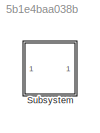
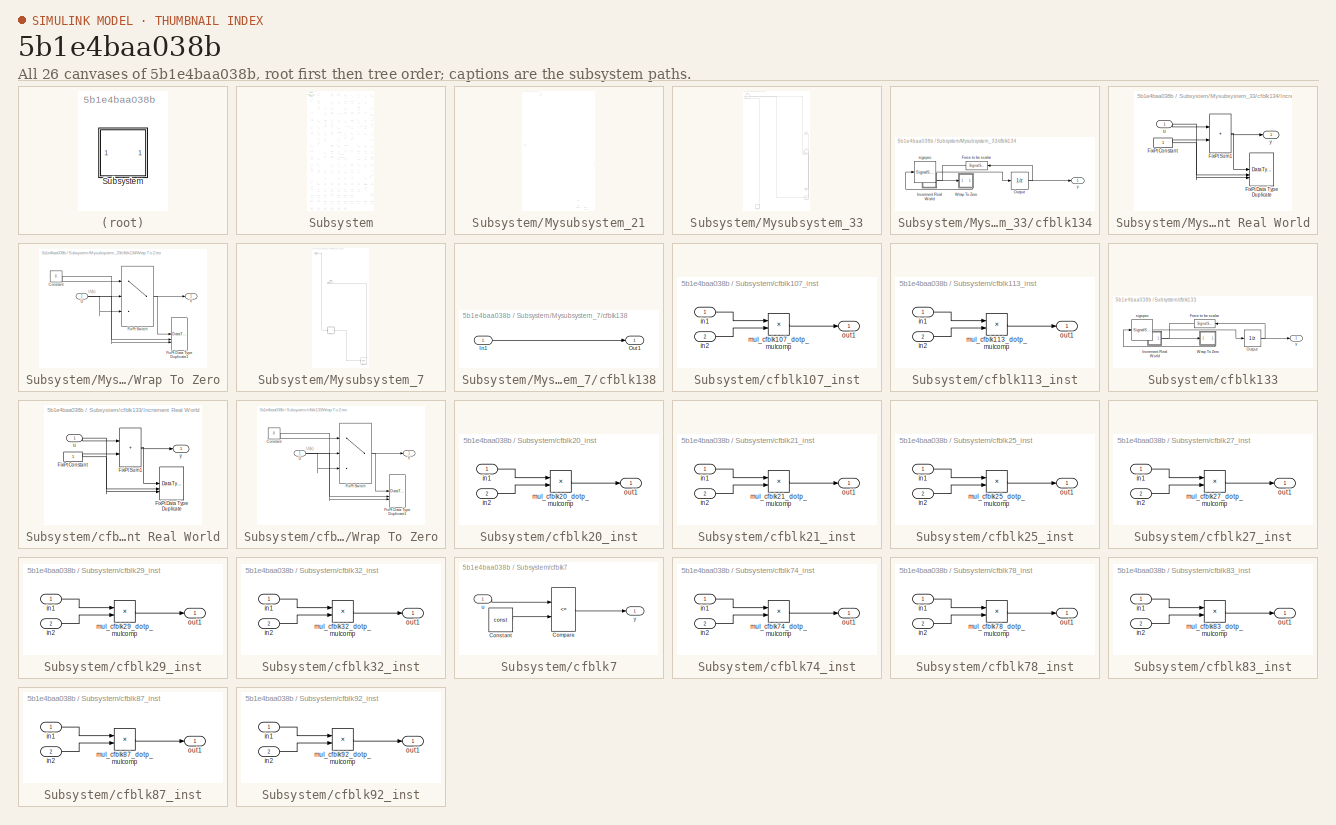
[diagram: thumbnail index - all 26 canvases of the model, root first then tree order]
MODEL slx_5b1e4baa038b
KIND model
CONFIG AbsTol = auto
CONFIG EnableMultiTasking = off
CONFIG FixedStep = auto
CONFIG MaxStep = auto
CONFIG MinStep = auto
CONFIG RelTol = 1e-3
CONFIG SampleTimeConstraint = Unconstrained
CONFIG SolverName = VariableStepAuto
CONFIG StartTime = 0.0
CONFIG StopTime = 10.0
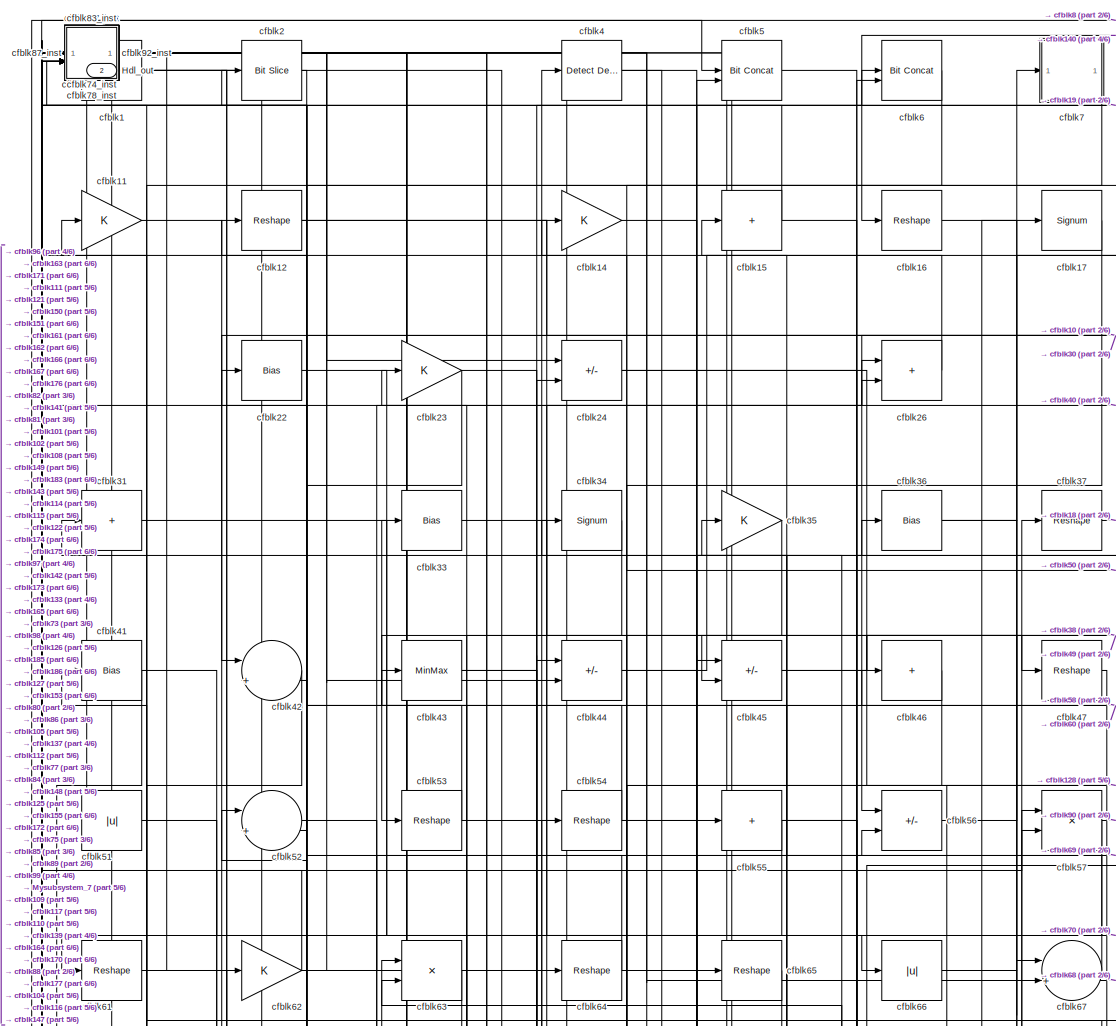
[diagram: Subsystem - part 1/6, top center region]
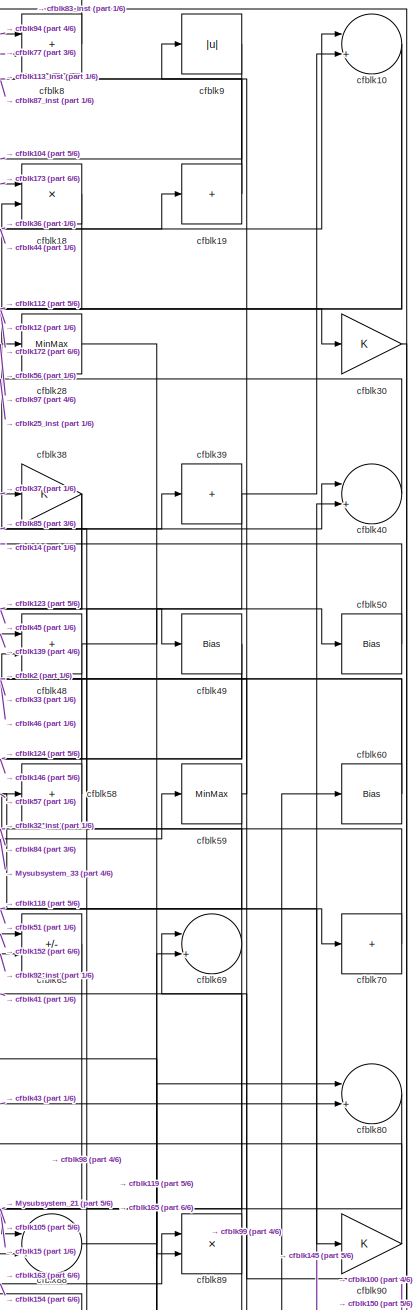
[diagram: Subsystem - part 2/6, top right region]
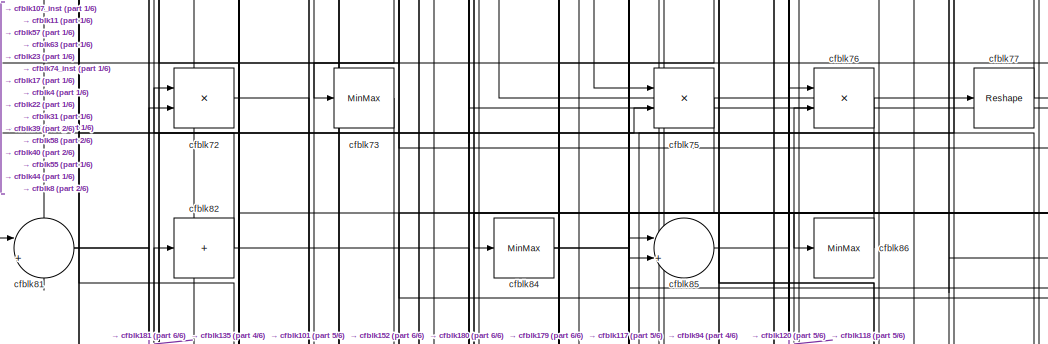
[diagram: Subsystem - part 3/6, central region]
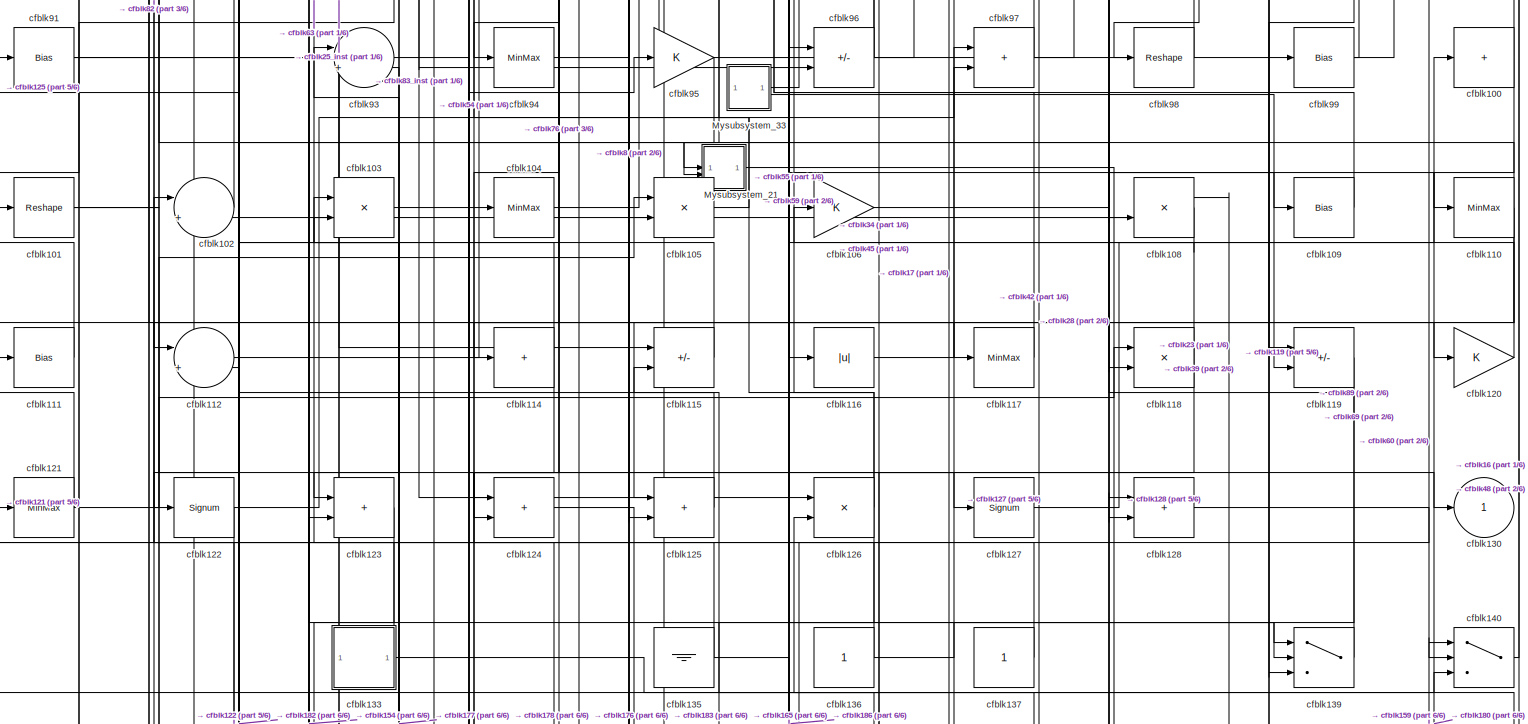
[diagram: Subsystem - part 4/6, full width, middle band]
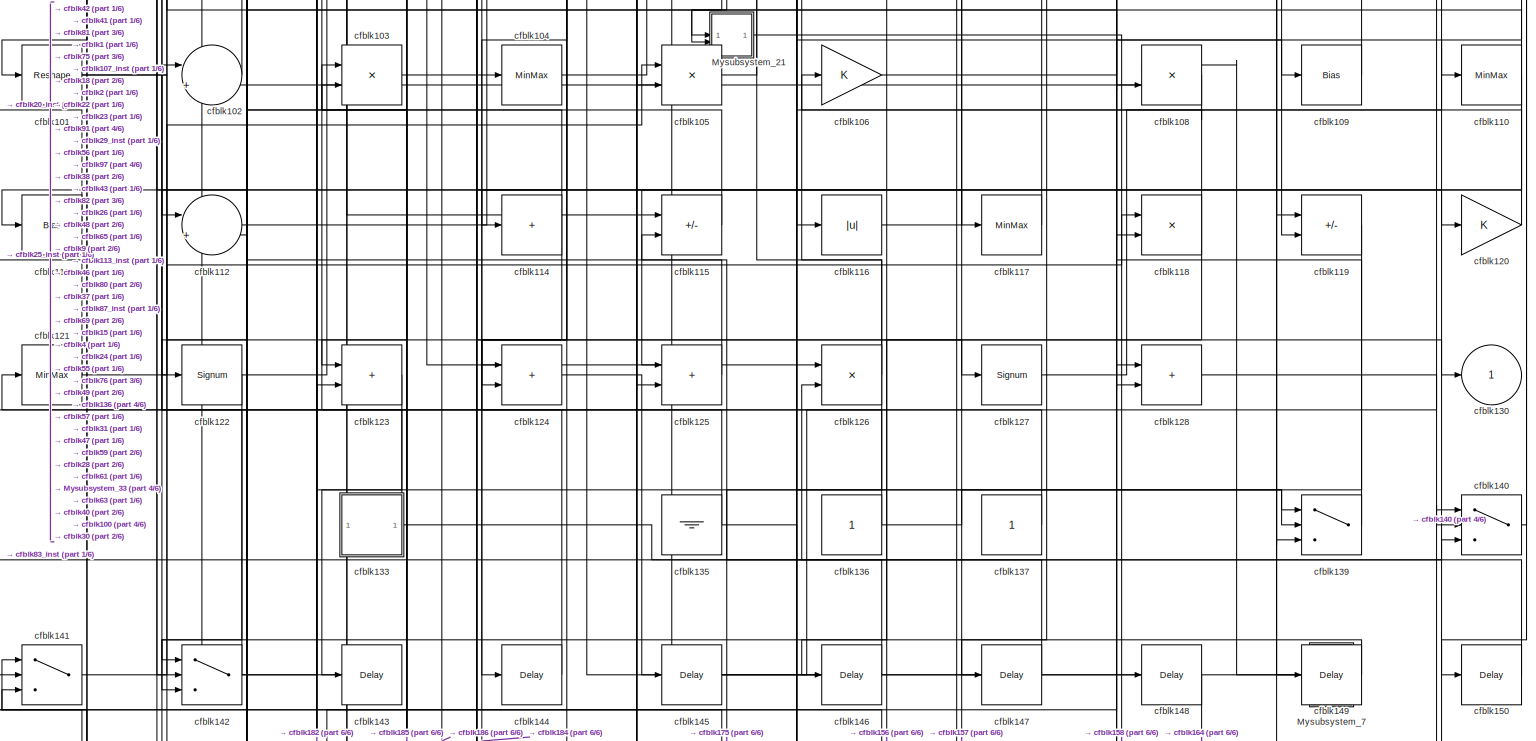
[diagram: Subsystem - part 5/6, full width, middle band]
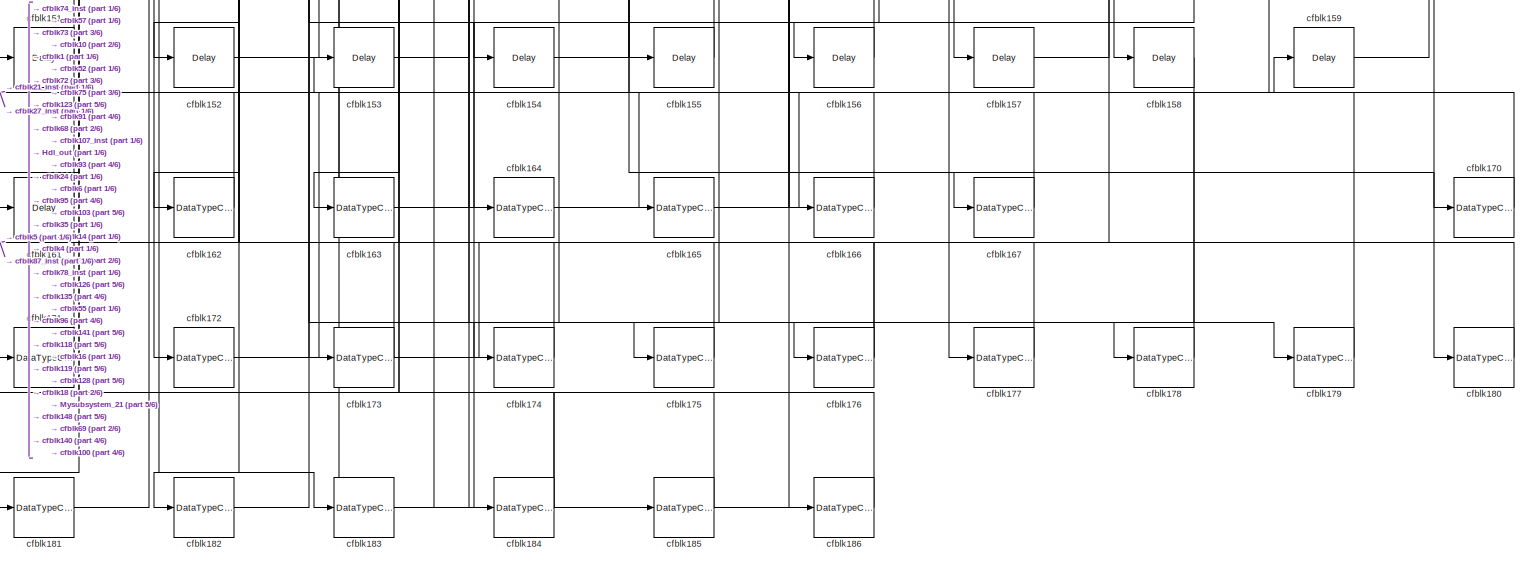
[diagram: Subsystem - part 6/6, full width, bottom band]
BLOCK [SubSystem] Subsystem
BLOCK [Outport] Subsystem/Hdl_out
  OutDataTypeStr = uint8
  Port = 2
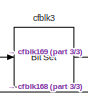
[diagram: Subsystem/Mysubsystem_21 - part 1/3, top left region]
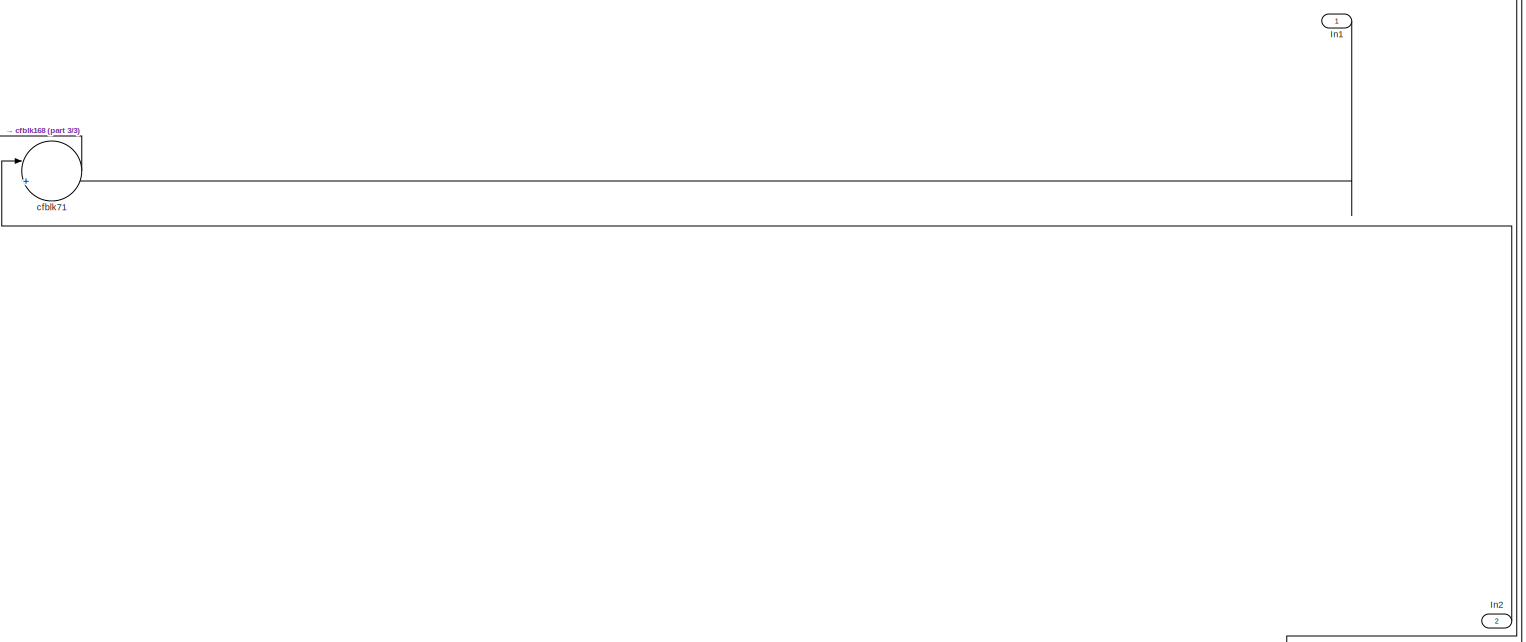
[diagram: Subsystem/Mysubsystem_21 - part 2/3, full width, middle band]
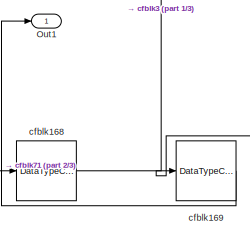
[diagram: Subsystem/Mysubsystem_21 - part 3/3, bottom right region]
BLOCK [SubSystem] Subsystem/Mysubsystem_21
BLOCK [Inport] Subsystem/Mysubsystem_21/In1
  OutDataTypeStr = uint8
  PortDimensions = 1
  SampleTime = 1
BLOCK [Inport] Subsystem/Mysubsystem_21/In2
  OutDataTypeStr = uint8
  Port = 2
  PortDimensions = 1
  SampleTime = 1
BLOCK [Outport] Subsystem/Mysubsystem_21/Out1
  SampleTime = 1
BLOCK [DataTypeConversion] Subsystem/Mysubsystem_21/cfblk168
  OutDataTypeStr = boolean
  RndMeth = Floor
  SaturateOnIntegerOverflow = off
BLOCK [DataTypeConversion] Subsystem/Mysubsystem_21/cfblk169
  OutDataTypeStr = uint8
  RndMeth = Floor
  SaturateOnIntegerOverflow = off
BLOCK [Reference] Subsystem/Mysubsystem_21/cfblk3  REF=simulink/Logic and Bit
Operations/Bit Set
  LibrarySourceBlock = hdlsllib/Logic and Bit\nOperations/Bit Set
  SourceBlock = simulink/Logic and Bit\nOperations/Bit Set
  SourceType = Bit Set
BLOCK [Sum] Subsystem/Mysubsystem_21/cfblk71
  Inputs = |++
BLOCK [SubSystem] Subsystem/Mysubsystem_33
BLOCK [Outport] Subsystem/Mysubsystem_33/Out1
  SampleTime = 1
BLOCK [Outport] Subsystem/Mysubsystem_33/Out2
  Port = 2
  SampleTime = 1
BLOCK [Reshape] Subsystem/Mysubsystem_33/cfblk129
BLOCK [Reshape] Subsystem/Mysubsystem_33/cfblk13
BLOCK [SubSystem] Subsystem/Mysubsystem_33/cfblk134
BLOCK [SignalSpecification] Subsystem/Mysubsystem_33/cfblk134/Force to be scalar
  Dimensions = 1
  DisableCoverage = on
BLOCK [SubSystem] Subsystem/Mysubsystem_33/cfblk134/Increment Real World
BLOCK [Constant] Subsystem/Mysubsystem_33/cfblk134/Increment Real World/FixPt Constant
  DisableCoverage = on
  OutDataTypeStr = Inherit: Inherit via back propagation
  SampleTime = -1
BLOCK [DataTypeDuplicate] Subsystem/Mysubsystem_33/cfblk134/Increment Real World/FixPt Data Type Duplicate
  DisableCoverage = on
  NumInputPorts = 3
BLOCK [Sum] Subsystem/Mysubsystem_33/cfblk134/Increment Real World/FixPt Sum1
  IconShape = rectangular
  InputSameDT = on
  LockScale = on
  OutDataTypeStr = Inherit: Inherit via back propagation
BLOCK [Inport] Subsystem/Mysubsystem_33/cfblk134/Increment Real World/u
  OutDataTypeStr = uint16
  SampleTime = 1
BLOCK [Outport] Subsystem/Mysubsystem_33/cfblk134/Increment Real World/y
  SampleTime = 1
BLOCK [UnitDelay] Subsystem/Mysubsystem_33/cfblk134/Output
  HasFrameUpgradeWarning = on
  InitialCondition = 0.0
  SampleTime = tsamp
BLOCK [SubSystem] Subsystem/Mysubsystem_33/cfblk134/Wrap To Zero
BLOCK [Constant] Subsystem/Mysubsystem_33/cfblk134/Wrap To Zero/Constant
  DisableCoverage = on
  OutDataTypeStr = Inherit: Inherit via back propagation
  SampleTime = -1
  Value = 0
BLOCK [DataTypeDuplicate] Subsystem/Mysubsystem_33/cfblk134/Wrap To Zero/FixPt Data Type Duplicate1
  DisableCoverage = on
  NumInputPorts = 3
BLOCK [Switch] Subsystem/Mysubsystem_33/cfblk134/Wrap To Zero/FixPt Switch
  Criteria = u2 > Threshold
  InputSameDT = off
  OutDataTypeStr = Inherit: Inherit via back propagation
  SaturateOnIntegerOverflow = off
  Threshold = Threshold
  ZeroCross = off
BLOCK [Inport] Subsystem/Mysubsystem_33/cfblk134/Wrap To Zero/U
  OutDataTypeStr = uint16
  SampleTime = 1
BLOCK [Outport] Subsystem/Mysubsystem_33/cfblk134/Wrap To Zero/Y
  SampleTime = 1
BLOCK [SignalSpecification] Subsystem/Mysubsystem_33/cfblk134/sigspec
  Dimensions = 1
  OutDataTypeStr = uint16
BLOCK [Outport] Subsystem/Mysubsystem_33/cfblk134/y
  SampleTime = 1
BLOCK [Sum] Subsystem/Mysubsystem_33/cfblk79
  Inputs = |++
BLOCK [SubSystem] Subsystem/Mysubsystem_7
BLOCK [Inport] Subsystem/Mysubsystem_7/In1
  OutDataTypeStr = uint8
  PortDimensions = 1
  SampleTime = 1
BLOCK [Outport] Subsystem/Mysubsystem_7/Out1
  SampleTime = 1
BLOCK [SubSystem] Subsystem/Mysubsystem_7/cfblk138
BLOCK [Inport] Subsystem/Mysubsystem_7/cfblk138/In1
  OutDataTypeStr = uint8
  PortDimensions = 1
  SampleTime = 1
BLOCK [Outport] Subsystem/Mysubsystem_7/cfblk138/Out1
  SampleTime = 1
BLOCK [Delay] Subsystem/Mysubsystem_7/cfblk160
  InputPortMap = u0
  SampleTime = 1
BLOCK [Reference] Subsystem/cfblk1  REF=simulink/Logic and Bit
Operations/Bitwise
Operator
  LibrarySourceBlock = hdlsllib/Logic and Bit\nOperations/Bitwise\nOperator
  SourceBlock = simulink/Logic and Bit\nOperations/Bitwise\nOperator
  SourceType = Bitwise Operator
BLOCK [Sum] Subsystem/cfblk10
  Inputs = |++
  OutDataTypeStr = uint8
BLOCK [Sum] Subsystem/cfblk100
  IconShape = rectangular
  Inputs = +
  OutDataTypeStr = uint8
BLOCK [Reshape] Subsystem/cfblk101
BLOCK [Sum] Subsystem/cfblk102
  Inputs = |++
  OutDataTypeStr = uint8
BLOCK [Product] Subsystem/cfblk103
  Inputs = */
  OutDataTypeStr = uint8
  RndMeth = Zero
  SaturateOnIntegerOverflow = on
BLOCK [MinMax] Subsystem/cfblk104
  OutDataTypeStr = uint8
BLOCK [Product] Subsystem/cfblk105
  Inputs = */
  OutDataTypeStr = uint8
  RndMeth = Zero
  SaturateOnIntegerOverflow = on
BLOCK [Gain] Subsystem/cfblk106
  OutDataTypeStr = uint8
BLOCK [SubSystem] Subsystem/cfblk107_inst
BLOCK [Inport] Subsystem/cfblk107_inst/in1
  OutDataTypeStr = uint8
  SampleTime = 1
BLOCK [Inport] Subsystem/cfblk107_inst/in2
  OutDataTypeStr = uint8
  Port = 2
  SampleTime = 1
BLOCK [Product] Subsystem/cfblk107_inst/mul_cfblk107_dotp_mulcomp
  Inputs = **
  OutDataTypeStr = uint8
  SampleTime = 1
BLOCK [Outport] Subsystem/cfblk107_inst/out1
  OutDataTypeStr = uint8
  SampleTime = 1
BLOCK [Product] Subsystem/cfblk108
  Inputs = */
  OutDataTypeStr = uint8
  RndMeth = Zero
  SaturateOnIntegerOverflow = on
BLOCK [Bias] Subsystem/cfblk109
  Bias = 0.0
  SaturateOnIntegerOverflow = off
BLOCK [Gain] Subsystem/cfblk11
  OutDataTypeStr = uint8
BLOCK [MinMax] Subsystem/cfblk110
  OutDataTypeStr = uint8
BLOCK [Bias] Subsystem/cfblk111
  Bias = 0.0
  SaturateOnIntegerOverflow = off
BLOCK [Sum] Subsystem/cfblk112
  Inputs = |++
  OutDataTypeStr = uint8
BLOCK [SubSystem] Subsystem/cfblk113_inst
BLOCK [Inport] Subsystem/cfblk113_inst/in1
  OutDataTypeStr = uint8
  SampleTime = 1
BLOCK [Inport] Subsystem/cfblk113_inst/in2
  OutDataTypeStr = uint8
  Port = 2
  SampleTime = 1
BLOCK [Product] Subsystem/cfblk113_inst/mul_cfblk113_dotp_mulcomp
  Inputs = **
  OutDataTypeStr = uint8
  SampleTime = 1
BLOCK [Outport] Subsystem/cfblk113_inst/out1
  OutDataTypeStr = uint8
  SampleTime = 1
BLOCK [Sum] Subsystem/cfblk114
  IconShape = rectangular
  Inputs = +
  OutDataTypeStr = uint8
BLOCK [Sum] Subsystem/cfblk115
  IconShape = rectangular
  Inputs = +-
  OutDataTypeStr = uint8
BLOCK [Abs] Subsystem/cfblk116
  OutDataTypeStr = uint8
  SaturateOnIntegerOverflow = off
BLOCK [MinMax] Subsystem/cfblk117
  OutDataTypeStr = uint8
BLOCK [Product] Subsystem/cfblk118
  Inputs = */
  OutDataTypeStr = uint8
  RndMeth = Zero
  SaturateOnIntegerOverflow = on
BLOCK [Sum] Subsystem/cfblk119
  IconShape = rectangular
  Inputs = +-
  OutDataTypeStr = uint8
BLOCK [Reshape] Subsystem/cfblk12
BLOCK [Gain] Subsystem/cfblk120
  OutDataTypeStr = uint8
BLOCK [MinMax] Subsystem/cfblk121
  OutDataTypeStr = uint8
BLOCK [Signum] Subsystem/cfblk122
BLOCK [Sum] Subsystem/cfblk123
  IconShape = rectangular
  OutDataTypeStr = uint8
BLOCK [Sum] Subsystem/cfblk124
  IconShape = rectangular
  OutDataTypeStr = uint8
BLOCK [Sum] Subsystem/cfblk125
  IconShape = rectangular
  OutDataTypeStr = uint8
BLOCK [Product] Subsystem/cfblk126
  Inputs = */
  OutDataTypeStr = uint8
  RndMeth = Zero
  SaturateOnIntegerOverflow = on
BLOCK [Signum] Subsystem/cfblk127
BLOCK [Sum] Subsystem/cfblk128
  IconShape = rectangular
  OutDataTypeStr = uint8
BLOCK [Outport] Subsystem/cfblk130
  OutDataTypeStr = uint8
  SampleTime = 1
  VectorParamsAs1DForOutWhenUnconnected = off
BLOCK [SubSystem] Subsystem/cfblk133
BLOCK [SignalSpecification] Subsystem/cfblk133/Force to be scalar
  Dimensions = 1
  DisableCoverage = on
BLOCK [SubSystem] Subsystem/cfblk133/Increment Real World
BLOCK [Constant] Subsystem/cfblk133/Increment Real World/FixPt Constant
  DisableCoverage = on
  OutDataTypeStr = Inherit: Inherit via back propagation
  SampleTime = -1
BLOCK [DataTypeDuplicate] Subsystem/cfblk133/Increment Real World/FixPt Data Type Duplicate
  DisableCoverage = on
  NumInputPorts = 3
BLOCK [Sum] Subsystem/cfblk133/Increment Real World/FixPt Sum1
  IconShape = rectangular
  InputSameDT = on
  LockScale = on
  OutDataTypeStr = Inherit: Inherit via back propagation
BLOCK [Inport] Subsystem/cfblk133/Increment Real World/u
  OutDataTypeStr = uint8
  SampleTime = 1
BLOCK [Outport] Subsystem/cfblk133/Increment Real World/y
  SampleTime = 1
BLOCK [UnitDelay] Subsystem/cfblk133/Output
  HasFrameUpgradeWarning = on
  InitialCondition = 0.0
  SampleTime = tsamp
BLOCK [SubSystem] Subsystem/cfblk133/Wrap To Zero
BLOCK [Constant] Subsystem/cfblk133/Wrap To Zero/Constant
  DisableCoverage = on
  OutDataTypeStr = Inherit: Inherit via back propagation
  SampleTime = -1
  Value = 0
BLOCK [DataTypeDuplicate] Subsystem/cfblk133/Wrap To Zero/FixPt Data Type Duplicate1
  DisableCoverage = on
  NumInputPorts = 3
BLOCK [Switch] Subsystem/cfblk133/Wrap To Zero/FixPt Switch
  Criteria = u2 > Threshold
  InputSameDT = off
  OutDataTypeStr = Inherit: Inherit via back propagation
  SaturateOnIntegerOverflow = off
  Threshold = Threshold
  ZeroCross = off
BLOCK [Inport] Subsystem/cfblk133/Wrap To Zero/U
  OutDataTypeStr = uint8
  SampleTime = 1
BLOCK [Outport] Subsystem/cfblk133/Wrap To Zero/Y
  SampleTime = 1
BLOCK [SignalSpecification] Subsystem/cfblk133/sigspec
  Dimensions = 1
  OutDataTypeStr = uint8
BLOCK [Outport] Subsystem/cfblk133/y
  SampleTime = 1
BLOCK [Ground] Subsystem/cfblk135
BLOCK [Constant] Subsystem/cfblk136
  OutDataTypeStr = uint8
  SampleTime = -1
BLOCK [Constant] Subsystem/cfblk137
  OutDataTypeStr = uint8
  SampleTime = -1
BLOCK [Switch] Subsystem/cfblk139
  InputSameDT = off
  OutDataTypeStr = uint8
  SaturateOnIntegerOverflow = off
BLOCK [Gain] Subsystem/cfblk14
  OutDataTypeStr = uint8
BLOCK [Switch] Subsystem/cfblk140
  InputSameDT = off
  OutDataTypeStr = uint8
  SaturateOnIntegerOverflow = off
BLOCK [Switch] Subsystem/cfblk141
  InputSameDT = off
  OutDataTypeStr = uint8
  SaturateOnIntegerOverflow = off
BLOCK [Switch] Subsystem/cfblk142
  InputSameDT = off
  OutDataTypeStr = uint8
  SaturateOnIntegerOverflow = off
BLOCK [Delay] Subsystem/cfblk143
  InputPortMap = u0
  SampleTime = 1
BLOCK [Delay] Subsystem/cfblk144
  InputPortMap = u0
  SampleTime = 1
BLOCK [Delay] Subsystem/cfblk145
  InputPortMap = u0
  SampleTime = 1
BLOCK [Delay] Subsystem/cfblk146
  InputPortMap = u0
  SampleTime = 1
BLOCK [Delay] Subsystem/cfblk147
  InputPortMap = u0
  SampleTime = 1
BLOCK [Delay] Subsystem/cfblk148
  InputPortMap = u0
  SampleTime = 1
BLOCK [Delay] Subsystem/cfblk149
  InputPortMap = u0
  SampleTime = 1
BLOCK [Sum] Subsystem/cfblk15
  IconShape = rectangular
  Inputs = +
  OutDataTypeStr = uint8
BLOCK [Delay] Subsystem/cfblk150
  InputPortMap = u0
  SampleTime = 1
BLOCK [Delay] Subsystem/cfblk151
  InputPortMap = u0
  SampleTime = 1
BLOCK [Delay] Subsystem/cfblk152
  InputPortMap = u0
  SampleTime = 1
BLOCK [Delay] Subsystem/cfblk153
  InputPortMap = u0
  SampleTime = 1
BLOCK [Delay] Subsystem/cfblk154
  InputPortMap = u0
  SampleTime = 1
BLOCK [Delay] Subsystem/cfblk155
  InputPortMap = u0
  SampleTime = 1
BLOCK [Delay] Subsystem/cfblk156
  InputPortMap = u0
  SampleTime = 1
BLOCK [Delay] Subsystem/cfblk157
  InputPortMap = u0
  SampleTime = 1
BLOCK [Delay] Subsystem/cfblk158
  InputPortMap = u0
  SampleTime = 1
BLOCK [Delay] Subsystem/cfblk159
  InputPortMap = u0
  SampleTime = 1
BLOCK [Reshape] Subsystem/cfblk16
BLOCK [Delay] Subsystem/cfblk161
  InputPortMap = u0
  SampleTime = 1
BLOCK [DataTypeConversion] Subsystem/cfblk162
  OutDataTypeStr = uint8
  RndMeth = Floor
  SaturateOnIntegerOverflow = off
BLOCK [DataTypeConversion] Subsystem/cfblk163
  OutDataTypeStr = uint8
  RndMeth = Floor
  SaturateOnIntegerOverflow = off
BLOCK [DataTypeConversion] Subsystem/cfblk164
  OutDataTypeStr = uint8
  RndMeth = Floor
  SaturateOnIntegerOverflow = off
BLOCK [DataTypeConversion] Subsystem/cfblk165
  OutDataTypeStr = uint8
  RndMeth = Floor
  SaturateOnIntegerOverflow = off
BLOCK [DataTypeConversion] Subsystem/cfblk166
  OutDataTypeStr = uint8
  RndMeth = Floor
  SaturateOnIntegerOverflow = off
BLOCK [DataTypeConversion] Subsystem/cfblk167
  OutDataTypeStr = uint8
  RndMeth = Floor
  SaturateOnIntegerOverflow = off
BLOCK [Signum] Subsystem/cfblk17
BLOCK [DataTypeConversion] Subsystem/cfblk170
  OutDataTypeStr = uint8
  RndMeth = Floor
  SaturateOnIntegerOverflow = off
BLOCK [DataTypeConversion] Subsystem/cfblk171
  OutDataTypeStr = uint8
  RndMeth = Floor
  SaturateOnIntegerOverflow = off
BLOCK [DataTypeConversion] Subsystem/cfblk172
  OutDataTypeStr = uint8
  RndMeth = Floor
  SaturateOnIntegerOverflow = off
BLOCK [DataTypeConversion] Subsystem/cfblk173
  OutDataTypeStr = uint8
  RndMeth = Floor
  SaturateOnIntegerOverflow = off
BLOCK [DataTypeConversion] Subsystem/cfblk174
  OutDataTypeStr = uint8
  RndMeth = Floor
  SaturateOnIntegerOverflow = off
BLOCK [DataTypeConversion] Subsystem/cfblk175
  OutDataTypeStr = uint8
  RndMeth = Floor
  SaturateOnIntegerOverflow = off
BLOCK [DataTypeConversion] Subsystem/cfblk176
  OutDataTypeStr = uint8
  RndMeth = Floor
  SaturateOnIntegerOverflow = off
BLOCK [DataTypeConversion] Subsystem/cfblk177
  OutDataTypeStr = uint8
  RndMeth = Floor
  SaturateOnIntegerOverflow = off
BLOCK [DataTypeConversion] Subsystem/cfblk178
  OutDataTypeStr = uint8
  RndMeth = Floor
  SaturateOnIntegerOverflow = off
BLOCK [DataTypeConversion] Subsystem/cfblk179
  OutDataTypeStr = uint8
  RndMeth = Floor
  SaturateOnIntegerOverflow = off
BLOCK [Product] Subsystem/cfblk18
  Inputs = */
  OutDataTypeStr = uint8
  RndMeth = Zero
  SaturateOnIntegerOverflow = on
BLOCK [DataTypeConversion] Subsystem/cfblk180
  OutDataTypeStr = uint8
  RndMeth = Floor
  SaturateOnIntegerOverflow = off
BLOCK [DataTypeConversion] Subsystem/cfblk181
  OutDataTypeStr = uint8
  RndMeth = Floor
  SaturateOnIntegerOverflow = off
BLOCK [DataTypeConversion] Subsystem/cfblk182
  OutDataTypeStr = uint8
  RndMeth = Floor
  SaturateOnIntegerOverflow = off
BLOCK [DataTypeConversion] Subsystem/cfblk183
  OutDataTypeStr = uint8
  RndMeth = Floor
  SaturateOnIntegerOverflow = off
BLOCK [DataTypeConversion] Subsystem/cfblk184
  OutDataTypeStr = uint8
  RndMeth = Floor
  SaturateOnIntegerOverflow = off
BLOCK [DataTypeConversion] Subsystem/cfblk185
  OutDataTypeStr = uint8
  RndMeth = Floor
  SaturateOnIntegerOverflow = off
BLOCK [DataTypeConversion] Subsystem/cfblk186
  OutDataTypeStr = uint8
  RndMeth = Floor
  SaturateOnIntegerOverflow = off
BLOCK [Sum] Subsystem/cfblk19
  IconShape = rectangular
  Inputs = +
  OutDataTypeStr = uint8
BLOCK [Reference] Subsystem/cfblk2  REF=hdlsllib/Logic and Bit
Operations/Bit Slice
  SourceBlock = hdlsllib/Logic and Bit\nOperations/Bit Slice
  SourceType = Bit Slice
BLOCK [SubSystem] Subsystem/cfblk20_inst
BLOCK [Inport] Subsystem/cfblk20_inst/in1
  OutDataTypeStr = uint8
  SampleTime = 1
BLOCK [Inport] Subsystem/cfblk20_inst/in2
  OutDataTypeStr = uint8
  Port = 2
  SampleTime = 1
BLOCK [Product] Subsystem/cfblk20_inst/mul_cfblk20_dotp_mulcomp
  Inputs = **
  OutDataTypeStr = uint8
  SampleTime = 1
BLOCK [Outport] Subsystem/cfblk20_inst/out1
  OutDataTypeStr = uint8
  SampleTime = 1
BLOCK [SubSystem] Subsystem/cfblk21_inst
BLOCK [Inport] Subsystem/cfblk21_inst/in1
  OutDataTypeStr = uint8
  SampleTime = 1
BLOCK [Inport] Subsystem/cfblk21_inst/in2
  OutDataTypeStr = uint8
  Port = 2
  SampleTime = 1
BLOCK [Product] Subsystem/cfblk21_inst/mul_cfblk21_dotp_mulcomp
  Inputs = **
  OutDataTypeStr = uint8
  SampleTime = 1
BLOCK [Outport] Subsystem/cfblk21_inst/out1
  OutDataTypeStr = uint8
  SampleTime = 1
BLOCK [Bias] Subsystem/cfblk22
  Bias = 0.0
  SaturateOnIntegerOverflow = off
BLOCK [Gain] Subsystem/cfblk23
  OutDataTypeStr = uint8
BLOCK [Sum] Subsystem/cfblk24
  IconShape = rectangular
  Inputs = +-
  OutDataTypeStr = uint8
BLOCK [SubSystem] Subsystem/cfblk25_inst
BLOCK [Inport] Subsystem/cfblk25_inst/in1
  OutDataTypeStr = uint8
  SampleTime = 1
BLOCK [Inport] Subsystem/cfblk25_inst/in2
  OutDataTypeStr = uint8
  Port = 2
  SampleTime = 1
BLOCK [Product] Subsystem/cfblk25_inst/mul_cfblk25_dotp_mulcomp
  Inputs = **
  OutDataTypeStr = uint8
  SampleTime = 1
BLOCK [Outport] Subsystem/cfblk25_inst/out1
  OutDataTypeStr = uint8
  SampleTime = 1
BLOCK [Sum] Subsystem/cfblk26
  IconShape = rectangular
  OutDataTypeStr = uint8
BLOCK [SubSystem] Subsystem/cfblk27_inst
BLOCK [Inport] Subsystem/cfblk27_inst/in1
  OutDataTypeStr = uint8
  SampleTime = 1
BLOCK [Inport] Subsystem/cfblk27_inst/in2
  OutDataTypeStr = uint8
  Port = 2
  SampleTime = 1
BLOCK [Product] Subsystem/cfblk27_inst/mul_cfblk27_dotp_mulcomp
  Inputs = **
  OutDataTypeStr = uint8
  SampleTime = 1
BLOCK [Outport] Subsystem/cfblk27_inst/out1
  OutDataTypeStr = uint8
  SampleTime = 1
BLOCK [MinMax] Subsystem/cfblk28
  OutDataTypeStr = uint8
BLOCK [SubSystem] Subsystem/cfblk29_inst
BLOCK [Inport] Subsystem/cfblk29_inst/in1
  OutDataTypeStr = uint8
  SampleTime = 1
BLOCK [Inport] Subsystem/cfblk29_inst/in2
  OutDataTypeStr = uint8
  Port = 2
  SampleTime = 1
BLOCK [Product] Subsystem/cfblk29_inst/mul_cfblk29_dotp_mulcomp
  Inputs = **
  OutDataTypeStr = uint8
  SampleTime = 1
BLOCK [Outport] Subsystem/cfblk29_inst/out1
  OutDataTypeStr = uint8
  SampleTime = 1
BLOCK [Gain] Subsystem/cfblk30
  OutDataTypeStr = uint8
BLOCK [Sum] Subsystem/cfblk31
  IconShape = rectangular
  Inputs = +
  OutDataTypeStr = uint8
BLOCK [SubSystem] Subsystem/cfblk32_inst
BLOCK [Inport] Subsystem/cfblk32_inst/in1
  OutDataTypeStr = uint8
  SampleTime = 1
BLOCK [Inport] Subsystem/cfblk32_inst/in2
  OutDataTypeStr = uint8
  Port = 2
  SampleTime = 1
BLOCK [Product] Subsystem/cfblk32_inst/mul_cfblk32_dotp_mulcomp
  Inputs = **
  OutDataTypeStr = uint8
  SampleTime = 1
BLOCK [Outport] Subsystem/cfblk32_inst/out1
  OutDataTypeStr = uint8
  SampleTime = 1
BLOCK [Bias] Subsystem/cfblk33
  Bias = 0.0
  SaturateOnIntegerOverflow = off
BLOCK [Signum] Subsystem/cfblk34
BLOCK [Gain] Subsystem/cfblk35
  OutDataTypeStr = uint8
BLOCK [Bias] Subsystem/cfblk36
  Bias = 0.0
  SaturateOnIntegerOverflow = off
BLOCK [Reshape] Subsystem/cfblk37
BLOCK [Gain] Subsystem/cfblk38
  OutDataTypeStr = uint8
BLOCK [Sum] Subsystem/cfblk39
  IconShape = rectangular
  Inputs = +
  OutDataTypeStr = uint8
BLOCK [Reference] Subsystem/cfblk4  REF=simulink/Logic and Bit
Operations/Detect
Decrease
  LibrarySourceBlock = hdlsllib/Logic and Bit\nOperations/Detect\nDecrease
  SourceBlock = simulink/Logic and Bit\nOperations/Detect\nDecrease
  SourceType = Detect Decrease
BLOCK [Sum] Subsystem/cfblk40
  Inputs = |++
  OutDataTypeStr = uint8
BLOCK [Bias] Subsystem/cfblk41
  Bias = 0.0
  SaturateOnIntegerOverflow = off
BLOCK [Sum] Subsystem/cfblk42
  Inputs = |++
  OutDataTypeStr = uint8
BLOCK [MinMax] Subsystem/cfblk43
  OutDataTypeStr = uint8
BLOCK [Sum] Subsystem/cfblk44
  IconShape = rectangular
  Inputs = +-
  OutDataTypeStr = uint8
BLOCK [Sum] Subsystem/cfblk45
  IconShape = rectangular
  Inputs = +-
  OutDataTypeStr = uint8
BLOCK [Sum] Subsystem/cfblk46
  IconShape = rectangular
  Inputs = +
  OutDataTypeStr = uint8
BLOCK [Reshape] Subsystem/cfblk47
BLOCK [Sum] Subsystem/cfblk48
  IconShape = rectangular
  OutDataTypeStr = uint8
BLOCK [Bias] Subsystem/cfblk49
  Bias = 0.0
  SaturateOnIntegerOverflow = off
BLOCK [Reference] Subsystem/cfblk5  REF=hdlsllib/Logic and Bit
Operations/Bit Concat
  SourceBlock = hdlsllib/Logic and Bit\nOperations/Bit Concat
  SourceType = Bit Concat
BLOCK [Bias] Subsystem/cfblk50
  Bias = 0.0
  SaturateOnIntegerOverflow = off
BLOCK [Abs] Subsystem/cfblk51
  OutDataTypeStr = uint8
  SaturateOnIntegerOverflow = off
BLOCK [Sum] Subsystem/cfblk52
  Inputs = |++
  OutDataTypeStr = uint8
BLOCK [Reshape] Subsystem/cfblk53
BLOCK [Reshape] Subsystem/cfblk54
BLOCK [Sum] Subsystem/cfblk55
  IconShape = rectangular
  Inputs = +
  OutDataTypeStr = uint8
BLOCK [Sum] Subsystem/cfblk56
  IconShape = rectangular
  Inputs = +-
  OutDataTypeStr = uint8
BLOCK [Product] Subsystem/cfblk57
  Inputs = */
  OutDataTypeStr = uint8
  RndMeth = Zero
  SaturateOnIntegerOverflow = on
BLOCK [Sum] Subsystem/cfblk58
  IconShape = rectangular
  Inputs = +
  OutDataTypeStr = uint8
BLOCK [MinMax] Subsystem/cfblk59
  OutDataTypeStr = uint8
BLOCK [Reference] Subsystem/cfblk6  REF=hdlsllib/Logic and Bit
Operations/Bit Concat
  SourceBlock = hdlsllib/Logic and Bit\nOperations/Bit Concat
  SourceType = Bit Concat
BLOCK [Bias] Subsystem/cfblk60
  Bias = 0.0
  SaturateOnIntegerOverflow = off
BLOCK [Reshape] Subsystem/cfblk61
BLOCK [Gain] Subsystem/cfblk62
  OutDataTypeStr = uint8
BLOCK [Product] Subsystem/cfblk63
  Inputs = */
  OutDataTypeStr = uint8
  RndMeth = Zero
  SaturateOnIntegerOverflow = on
BLOCK [Reshape] Subsystem/cfblk64
BLOCK [Reshape] Subsystem/cfblk65
BLOCK [Abs] Subsystem/cfblk66
  OutDataTypeStr = uint8
  SaturateOnIntegerOverflow = off
BLOCK [Sum] Subsystem/cfblk67
  Inputs = |++
  OutDataTypeStr = uint8
BLOCK [Sum] Subsystem/cfblk68
  IconShape = rectangular
  Inputs = +-
  OutDataTypeStr = uint8
BLOCK [Sum] Subsystem/cfblk69
  Inputs = |++
  OutDataTypeStr = uint8
BLOCK [SubSystem] Subsystem/cfblk7
BLOCK [RelationalOperator] Subsystem/cfblk7/Compare
  Operator = <=
  OutDataTypeStr = fixdt(0, 8)
BLOCK [Constant] Subsystem/cfblk7/Constant
  DisableCoverage = on
  OutDataTypeStr = Inherit: Inherit via back propagation
  SampleTime = -1
  Value = const
BLOCK [Inport] Subsystem/cfblk7/u
  OutDataTypeStr = uint8
  SampleTime = 1
BLOCK [Outport] Subsystem/cfblk7/y
  SampleTime = 1
BLOCK [Sum] Subsystem/cfblk70
  IconShape = rectangular
  Inputs = +
  OutDataTypeStr = uint8
BLOCK [Product] Subsystem/cfblk72
  Inputs = */
  OutDataTypeStr = uint8
  RndMeth = Zero
  SaturateOnIntegerOverflow = on
BLOCK [MinMax] Subsystem/cfblk73
  OutDataTypeStr = uint8
BLOCK [SubSystem] Subsystem/cfblk74_inst
BLOCK [Inport] Subsystem/cfblk74_inst/in1
  OutDataTypeStr = uint8
  SampleTime = 1
BLOCK [Inport] Subsystem/cfblk74_inst/in2
  OutDataTypeStr = uint8
  Port = 2
  SampleTime = 1
BLOCK [Product] Subsystem/cfblk74_inst/mul_cfblk74_dotp_mulcomp
  Inputs = **
  OutDataTypeStr = uint8
  SampleTime = 1
BLOCK [Outport] Subsystem/cfblk74_inst/out1
  OutDataTypeStr = uint8
  SampleTime = 1
BLOCK [Product] Subsystem/cfblk75
  Inputs = */
  OutDataTypeStr = uint8
  RndMeth = Zero
  SaturateOnIntegerOverflow = on
BLOCK [Product] Subsystem/cfblk76
  Inputs = */
  OutDataTypeStr = uint8
  RndMeth = Zero
  SaturateOnIntegerOverflow = on
BLOCK [Reshape] Subsystem/cfblk77
BLOCK [SubSystem] Subsystem/cfblk78_inst
BLOCK [Inport] Subsystem/cfblk78_inst/in1
  OutDataTypeStr = uint8
  SampleTime = 1
BLOCK [Inport] Subsystem/cfblk78_inst/in2
  OutDataTypeStr = uint8
  Port = 2
  SampleTime = 1
BLOCK [Product] Subsystem/cfblk78_inst/mul_cfblk78_dotp_mulcomp
  Inputs = **
  OutDataTypeStr = uint8
  SampleTime = 1
BLOCK [Outport] Subsystem/cfblk78_inst/out1
  OutDataTypeStr = uint8
  SampleTime = 1
BLOCK [Sum] Subsystem/cfblk8
  IconShape = rectangular
  OutDataTypeStr = uint8
BLOCK [Sum] Subsystem/cfblk80
  Inputs = |++
  OutDataTypeStr = uint8
BLOCK [Sum] Subsystem/cfblk81
  Inputs = |++
  OutDataTypeStr = uint8
BLOCK [Sum] Subsystem/cfblk82
  IconShape = rectangular
  Inputs = +
  OutDataTypeStr = uint8
BLOCK [SubSystem] Subsystem/cfblk83_inst
BLOCK [Inport] Subsystem/cfblk83_inst/in1
  OutDataTypeStr = uint8
  SampleTime = 1
BLOCK [Inport] Subsystem/cfblk83_inst/in2
  OutDataTypeStr = uint8
  Port = 2
  SampleTime = 1
BLOCK [Product] Subsystem/cfblk83_inst/mul_cfblk83_dotp_mulcomp
  Inputs = **
  OutDataTypeStr = uint8
  SampleTime = 1
BLOCK [Outport] Subsystem/cfblk83_inst/out1
  OutDataTypeStr = uint8
  SampleTime = 1
BLOCK [MinMax] Subsystem/cfblk84
  OutDataTypeStr = uint8
BLOCK [Sum] Subsystem/cfblk85
  Inputs = |++
  OutDataTypeStr = uint8
BLOCK [MinMax] Subsystem/cfblk86
  OutDataTypeStr = uint8
BLOCK [SubSystem] Subsystem/cfblk87_inst
BLOCK [Inport] Subsystem/cfblk87_inst/in1
  OutDataTypeStr = uint8
  SampleTime = 1
BLOCK [Inport] Subsystem/cfblk87_inst/in2
  OutDataTypeStr = uint8
  Port = 2
  SampleTime = 1
BLOCK [Product] Subsystem/cfblk87_inst/mul_cfblk87_dotp_mulcomp
  Inputs = **
  OutDataTypeStr = uint8
  SampleTime = 1
BLOCK [Outport] Subsystem/cfblk87_inst/out1
  OutDataTypeStr = uint8
  SampleTime = 1
BLOCK [Sum] Subsystem/cfblk88
  Inputs = |++
  OutDataTypeStr = uint8
BLOCK [Product] Subsystem/cfblk89
  Inputs = */
  OutDataTypeStr = uint8
  RndMeth = Zero
  SaturateOnIntegerOverflow = on
BLOCK [Abs] Subsystem/cfblk9
  OutDataTypeStr = uint8
  SaturateOnIntegerOverflow = off
BLOCK [Gain] Subsystem/cfblk90
  OutDataTypeStr = uint8
BLOCK [Bias] Subsystem/cfblk91
  Bias = 0.0
  SaturateOnIntegerOverflow = off
BLOCK [SubSystem] Subsystem/cfblk92_inst
BLOCK [Inport] Subsystem/cfblk92_inst/in1
  OutDataTypeStr = uint8
  SampleTime = 1
BLOCK [Inport] Subsystem/cfblk92_inst/in2
  OutDataTypeStr = uint8
  Port = 2
BLOCK [Product] Subsystem/cfblk92_inst/mul_cfblk92_dotp_mulcomp
  Inputs = **
  OutDataTypeStr = uint8
  SampleTime = 1
BLOCK [Outport] Subsystem/cfblk92_inst/out1
  OutDataTypeStr = uint8
  SampleTime = 1
BLOCK [Sum] Subsystem/cfblk93
  Inputs = |++
  OutDataTypeStr = uint8
BLOCK [MinMax] Subsystem/cfblk94
  OutDataTypeStr = uint8
BLOCK [Gain] Subsystem/cfblk95
  OutDataTypeStr = uint8
BLOCK [Sum] Subsystem/cfblk96
  IconShape = rectangular
  Inputs = +-
  OutDataTypeStr = uint8
BLOCK [Sum] Subsystem/cfblk97
  IconShape = rectangular
  OutDataTypeStr = uint8
BLOCK [Reshape] Subsystem/cfblk98
BLOCK [Bias] Subsystem/cfblk99
  Bias = 0.0
  SaturateOnIntegerOverflow = off
ANNOTATION Subsystem/Mysubsystem_33/cfblk134/Wrap To Zero: U(k)
ANNOTATION Subsystem/cfblk133/Wrap To Zero: U(k)
LINE Subsystem/Mysubsystem_21/In1:1 -> Subsystem/Mysubsystem_21/cfblk71:2
LINE Subsystem/Mysubsystem_21/In2:1 -> Subsystem/Mysubsystem_21/cfblk71:1
LINE Subsystem/Mysubsystem_21/cfblk168:1 -> Subsystem/Mysubsystem_21/cfblk3:1
LINE Subsystem/Mysubsystem_21/cfblk169:1 -> Subsystem/Mysubsystem_21/Out1:1
LINE Subsystem/Mysubsystem_21/cfblk3:1 -> Subsystem/Mysubsystem_21/cfblk169:1
LINE Subsystem/Mysubsystem_21/cfblk71:1 -> Subsystem/Mysubsystem_21/cfblk168:1
LINE Subsystem/Mysubsystem_21:1 -> Subsystem/cfblk158:1
NET Subsystem/Mysubsystem_33/cfblk129:1 -> Subsystem/Mysubsystem_33/Out1:1, Subsystem/Mysubsystem_33/cfblk79:1
LINE Subsystem/Mysubsystem_33/cfblk134:1 -> Subsystem/Mysubsystem_33/cfblk13:1
NET Subsystem/Mysubsystem_33/cfblk13:1 -> Subsystem/Mysubsystem_33/cfblk129:1, Subsystem/Mysubsystem_33/cfblk79:2
LINE Subsystem/Mysubsystem_33/cfblk79:1 -> Subsystem/Mysubsystem_33/Out2:1
LINE Subsystem/Mysubsystem_33:1 -> Subsystem/cfblk59:1
LINE Subsystem/Mysubsystem_33:2 -> Subsystem/cfblk119:2
LINE Subsystem/Mysubsystem_7/In1:1 -> Subsystem/Mysubsystem_7/cfblk138:1
LINE Subsystem/Mysubsystem_7/cfblk138/In1:1 -> Subsystem/Mysubsystem_7/cfblk138/Out1:1
LINE Subsystem/Mysubsystem_7/cfblk138:1 -> Subsystem/Mysubsystem_7/cfblk160:1
LINE Subsystem/Mysubsystem_7/cfblk160:1 -> Subsystem/Mysubsystem_7/Out1:1
LINE Subsystem/Mysubsystem_7:1 -> Subsystem/cfblk108:1
NET Subsystem/cfblk100:1 -> Subsystem/cfblk180:1, Subsystem/cfblk48:2
NET Subsystem/cfblk101:1 -> Subsystem/cfblk130:1, Subsystem/cfblk75:2
LINE Subsystem/cfblk102:1 -> Subsystem/cfblk107_inst:2
LINE Subsystem/cfblk103:1 -> Subsystem/cfblk184:1
LINE Subsystem/cfblk104:1 -> Subsystem/cfblk37:1
LINE Subsystem/cfblk105:1 -> Subsystem/cfblk4:1
LINE Subsystem/cfblk106:1 -> Subsystem/cfblk109:1
LINE Subsystem/cfblk107_inst/in1:1 -> Subsystem/cfblk107_inst/mul_cfblk107_dotp_mulcomp:1
LINE Subsystem/cfblk107_inst/in2:1 -> Subsystem/cfblk107_inst/mul_cfblk107_dotp_mulcomp:2
LINE Subsystem/cfblk107_inst/mul_cfblk107_dotp_mulcomp:1 -> Subsystem/cfblk107_inst/out1:1
NET Subsystem/cfblk107_inst:1 -> Subsystem/cfblk126:1, Subsystem/cfblk185:1, Subsystem/cfblk81:2
LINE Subsystem/cfblk108:1 -> Subsystem/cfblk102:2
LINE Subsystem/cfblk109:1 -> Subsystem/cfblk63:1
NET Subsystem/cfblk10:1 -> Subsystem/cfblk172:1, Subsystem/cfblk56:1
NET Subsystem/cfblk110:1 -> Subsystem/Mysubsystem_21:2, Subsystem/cfblk111:1, Subsystem/cfblk125:1
LINE Subsystem/cfblk111:1 -> Subsystem/cfblk20_inst:2
LINE Subsystem/cfblk112:1 -> Subsystem/cfblk26:1
LINE Subsystem/cfblk113_inst/in1:1 -> Subsystem/cfblk113_inst/mul_cfblk113_dotp_mulcomp:1
LINE Subsystem/cfblk113_inst/in2:1 -> Subsystem/cfblk113_inst/mul_cfblk113_dotp_mulcomp:2
LINE Subsystem/cfblk113_inst/mul_cfblk113_dotp_mulcomp:1 -> Subsystem/cfblk113_inst/out1:1
LINE Subsystem/cfblk113_inst:1 -> Subsystem/cfblk148:1
NET Subsystem/cfblk114:1 -> Subsystem/cfblk144:1, Subsystem/cfblk22:1
LINE Subsystem/cfblk115:1 -> Subsystem/cfblk20_inst:1
LINE Subsystem/cfblk116:1 -> Subsystem/cfblk57:1
LINE Subsystem/cfblk117:1 -> Subsystem/cfblk31:1
NET Subsystem/cfblk118:1 -> Subsystem/cfblk156:1, Subsystem/cfblk76:2
LINE Subsystem/cfblk119:1 -> Subsystem/cfblk157:1
LINE Subsystem/cfblk11:1 -> Subsystem/cfblk42:1
LINE Subsystem/cfblk120:1 -> Subsystem/cfblk76:1
NET Subsystem/cfblk121:1 -> Subsystem/cfblk105:1, Subsystem/cfblk25_inst:2
NET Subsystem/cfblk122:1 -> Subsystem/cfblk142:3, Subsystem/cfblk97:1
LINE Subsystem/cfblk123:1 -> Subsystem/cfblk143:1
LINE Subsystem/cfblk124:1 -> Subsystem/cfblk145:1
LINE Subsystem/cfblk125:1 -> Subsystem/cfblk91:1
NET Subsystem/cfblk126:1 -> Subsystem/cfblk106:1, Subsystem/cfblk15:1, Subsystem/cfblk175:1
LINE Subsystem/cfblk127:1 -> Subsystem/cfblk100:1
LINE Subsystem/cfblk128:1 -> Subsystem/cfblk140:2
NET Subsystem/cfblk12:1 -> Subsystem/cfblk30:1, Subsystem/cfblk66:1
NET Subsystem/cfblk133:1 -> Subsystem/cfblk140:3, Subsystem/cfblk63:2
NET Subsystem/cfblk135:1 -> Subsystem/cfblk186:1, Subsystem/cfblk82:1
NET Subsystem/cfblk136:1 -> Subsystem/cfblk121:1, Subsystem/cfblk97:2
LINE Subsystem/cfblk137:1 -> Subsystem/cfblk54:1
LINE Subsystem/cfblk139:1 -> Subsystem/cfblk48:1
LINE Subsystem/cfblk140:1 -> Subsystem/cfblk16:1
LINE Subsystem/cfblk141:1 -> Subsystem/cfblk118:1
NET Subsystem/cfblk142:1 -> Subsystem/cfblk29_inst:2, Subsystem/cfblk56:2
LINE Subsystem/cfblk143:1 -> Subsystem/cfblk1:1
LINE Subsystem/cfblk144:1 -> Subsystem/cfblk102:1
LINE Subsystem/cfblk145:1 -> Subsystem/cfblk40:2
LINE Subsystem/cfblk146:1 -> Subsystem/cfblk126:2
LINE Subsystem/cfblk147:1 -> Subsystem/cfblk115:2
LINE Subsystem/cfblk148:1 -> Subsystem/cfblk164:1
LINE Subsystem/cfblk149:1 -> Subsystem/cfblk142:1
LINE Subsystem/cfblk14:1 -> Subsystem/cfblk155:1
LINE Subsystem/cfblk150:1 -> Subsystem/cfblk83_inst:2
LINE Subsystem/cfblk151:1 -> Subsystem/cfblk74_inst:2
LINE Subsystem/cfblk152:1 -> Subsystem/cfblk68:1
LINE Subsystem/cfblk153:1 -> Subsystem/cfblk24:2
LINE Subsystem/cfblk154:1 -> Subsystem/cfblk89:1
LINE Subsystem/cfblk155:1 -> Subsystem/cfblk78_inst:1
LINE Subsystem/cfblk156:1 -> Subsystem/cfblk141:1
LINE Subsystem/cfblk157:1 -> Subsystem/cfblk128:1
LINE Subsystem/cfblk158:1 -> Subsystem/cfblk178:1
LINE Subsystem/cfblk159:1 -> Subsystem/cfblk140:1
NET Subsystem/cfblk15:1 -> Subsystem/cfblk21_inst:1, Subsystem/cfblk88:1
LINE Subsystem/cfblk161:1 -> Subsystem/cfblk21_inst:2
LINE Subsystem/cfblk162:1 -> Subsystem/cfblk74_inst:1
LINE Subsystem/cfblk163:1 -> Subsystem/cfblk6:1
LINE Subsystem/cfblk164:1 -> Subsystem/cfblk6:2
NET Subsystem/cfblk165:1 -> Subsystem/cfblk69:2, Subsystem/cfblk96:1
LINE Subsystem/cfblk166:1 -> Subsystem/cfblk27_inst:1
LINE Subsystem/cfblk167:1 -> Subsystem/cfblk27_inst:2
LINE Subsystem/cfblk16:1 -> Subsystem/cfblk177:1
LINE Subsystem/cfblk170:1 -> Subsystem/cfblk153:1
LINE Subsystem/cfblk171:1 -> Subsystem/cfblk5:1
LINE Subsystem/cfblk172:1 -> Subsystem/cfblk5:2
NET Subsystem/cfblk173:1 -> Subsystem/cfblk151:1, Subsystem/cfblk18:1
LINE Subsystem/cfblk174:1 -> Subsystem/cfblk52:1
LINE Subsystem/cfblk175:1 -> Subsystem/cfblk52:2
NET Subsystem/cfblk176:1 -> Subsystem/cfblk78_inst:2, Subsystem/cfblk87_inst:1
LINE Subsystem/cfblk177:1 -> Subsystem/cfblk93:1
LINE Subsystem/cfblk178:1 -> Subsystem/cfblk93:2
LINE Subsystem/cfblk179:1 -> Subsystem/cfblk159:1
LINE Subsystem/cfblk17:1 -> Subsystem/cfblk84:1
LINE Subsystem/cfblk180:1 -> Subsystem/cfblk72:1
LINE Subsystem/cfblk181:1 -> Subsystem/cfblk72:2
LINE Subsystem/cfblk182:1 -> Subsystem/cfblk123:2
LINE Subsystem/cfblk183:1 -> Subsystem/cfblk95:1
NET Subsystem/cfblk184:1 -> Subsystem/cfblk141:3, Subsystem/cfblk171:1
LINE Subsystem/cfblk185:1 -> Subsystem/cfblk103:1
NET Subsystem/cfblk186:1 -> Subsystem/Hdl_out:1, Subsystem/cfblk103:2
LINE Subsystem/cfblk18:1 -> Subsystem/cfblk112:1
NET Subsystem/cfblk19:1 -> Subsystem/cfblk113_inst:2, Subsystem/cfblk87_inst:2
NET Subsystem/cfblk1:1 -> Subsystem/cfblk108:2, Subsystem/cfblk183:1
LINE Subsystem/cfblk20_inst/in1:1 -> Subsystem/cfblk20_inst/mul_cfblk20_dotp_mulcomp:1
LINE Subsystem/cfblk20_inst/in2:1 -> Subsystem/cfblk20_inst/mul_cfblk20_dotp_mulcomp:2
LINE Subsystem/cfblk20_inst/mul_cfblk20_dotp_mulcomp:1 -> Subsystem/cfblk20_inst/out1:1
LINE Subsystem/cfblk20_inst:1 -> Subsystem/cfblk64:1
LINE Subsystem/cfblk21_inst/in1:1 -> Subsystem/cfblk21_inst/mul_cfblk21_dotp_mulcomp:1
LINE Subsystem/cfblk21_inst/in2:1 -> Subsystem/cfblk21_inst/mul_cfblk21_dotp_mulcomp:2
LINE Subsystem/cfblk21_inst/mul_cfblk21_dotp_mulcomp:1 -> Subsystem/cfblk21_inst/out1:1
LINE Subsystem/cfblk21_inst:1 -> Subsystem/cfblk24:1
LINE Subsystem/cfblk22:1 -> Subsystem/cfblk85:1
NET Subsystem/cfblk23:1 -> Subsystem/cfblk112:2, Subsystem/cfblk86:1
NET Subsystem/cfblk24:1 -> Subsystem/cfblk116:1, Subsystem/cfblk128:2
LINE Subsystem/cfblk25_inst/in1:1 -> Subsystem/cfblk25_inst/mul_cfblk25_dotp_mulcomp:1
LINE Subsystem/cfblk25_inst/in2:1 -> Subsystem/cfblk25_inst/mul_cfblk25_dotp_mulcomp:2
LINE Subsystem/cfblk25_inst/mul_cfblk25_dotp_mulcomp:1 -> Subsystem/cfblk25_inst/out1:1
NET Subsystem/cfblk25_inst:1 -> Subsystem/cfblk115:1, Subsystem/cfblk55:1, Subsystem/cfblk99:1
LINE Subsystem/cfblk26:1 -> Subsystem/cfblk29_inst:1
LINE Subsystem/cfblk27_inst/in1:1 -> Subsystem/cfblk27_inst/mul_cfblk27_dotp_mulcomp:1
LINE Subsystem/cfblk27_inst/in2:1 -> Subsystem/cfblk27_inst/mul_cfblk27_dotp_mulcomp:2
LINE Subsystem/cfblk27_inst/mul_cfblk27_dotp_mulcomp:1 -> Subsystem/cfblk27_inst/out1:1
LINE Subsystem/cfblk27_inst:1 -> Subsystem/cfblk165:1
LINE Subsystem/cfblk28:1 -> Subsystem/cfblk119:1
LINE Subsystem/cfblk29_inst/in1:1 -> Subsystem/cfblk29_inst/mul_cfblk29_dotp_mulcomp:1
LINE Subsystem/cfblk29_inst/in2:1 -> Subsystem/cfblk29_inst/mul_cfblk29_dotp_mulcomp:2
LINE Subsystem/cfblk29_inst/mul_cfblk29_dotp_mulcomp:1 -> Subsystem/cfblk29_inst/out1:1
LINE Subsystem/cfblk29_inst:1 -> Subsystem/cfblk113_inst:1
LINE Subsystem/cfblk2:1 -> Subsystem/cfblk122:1
LINE Subsystem/cfblk30:1 -> Subsystem/cfblk150:1
LINE Subsystem/cfblk31:1 -> Subsystem/cfblk85:2
LINE Subsystem/cfblk32_inst/in1:1 -> Subsystem/cfblk32_inst/mul_cfblk32_dotp_mulcomp:1
LINE Subsystem/cfblk32_inst/in2:1 -> Subsystem/cfblk32_inst/mul_cfblk32_dotp_mulcomp:2
LINE Subsystem/cfblk32_inst/mul_cfblk32_dotp_mulcomp:1 -> Subsystem/cfblk32_inst/out1:1
LINE Subsystem/cfblk32_inst:1 -> Subsystem/cfblk44:2
LINE Subsystem/cfblk33:1 -> Subsystem/cfblk67:1
LINE Subsystem/cfblk34:1 -> Subsystem/cfblk53:1
LINE Subsystem/cfblk35:1 -> Subsystem/cfblk174:1
NET Subsystem/cfblk36:1 -> Subsystem/cfblk19:1, Subsystem/cfblk88:2
LINE Subsystem/cfblk37:1 -> Subsystem/cfblk18:2
NET Subsystem/cfblk38:1 -> Subsystem/cfblk123:1, Subsystem/cfblk45:2
NET Subsystem/cfblk39:1 -> Subsystem/cfblk10:2, Subsystem/cfblk98:1
LINE Subsystem/cfblk40:1 -> Subsystem/cfblk25_inst:1
NET Subsystem/cfblk41:1 -> Subsystem/cfblk141:2, Subsystem/cfblk142:2
LINE Subsystem/cfblk42:1 -> Subsystem/cfblk101:1
NET Subsystem/cfblk43:1 -> Subsystem/cfblk127:1, Subsystem/cfblk80:2
NET Subsystem/cfblk44:1 -> Subsystem/cfblk10:1, Subsystem/cfblk89:2
NET Subsystem/cfblk45:1 -> Subsystem/cfblk47:1, Subsystem/cfblk49:1
LINE Subsystem/cfblk46:1 -> Subsystem/cfblk125:2
LINE Subsystem/cfblk47:1 -> Subsystem/cfblk147:1
NET Subsystem/cfblk48:1 -> Subsystem/cfblk124:2, Subsystem/cfblk50:1
NET Subsystem/cfblk49:1 -> Subsystem/cfblk124:1, Subsystem/cfblk146:1
NET Subsystem/cfblk4:1 -> Subsystem/cfblk167:1, Subsystem/cfblk75:1
LINE Subsystem/cfblk50:1 -> Subsystem/cfblk14:1
LINE Subsystem/cfblk51:1 -> Subsystem/cfblk70:1
LINE Subsystem/cfblk52:1 -> Subsystem/cfblk173:1
LINE Subsystem/cfblk53:1 -> Subsystem/cfblk12:1
NET Subsystem/cfblk54:1 -> Subsystem/cfblk107_inst:1, Subsystem/cfblk36:1
NET Subsystem/cfblk55:1 -> Subsystem/cfblk110:1, Subsystem/cfblk139:2, Subsystem/cfblk166:1, Subsystem/cfblk73:1
LINE Subsystem/cfblk56:1 -> Subsystem/cfblk7:1
NET Subsystem/cfblk57:1 -> Subsystem/cfblk161:1, Subsystem/cfblk90:1
LINE Subsystem/cfblk58:1 -> Subsystem/cfblk46:1
NET Subsystem/cfblk59:1 -> Subsystem/cfblk118:2, Subsystem/cfblk9:1
LINE Subsystem/cfblk5:1 -> Subsystem/cfblk170:1
NET Subsystem/cfblk60:1 -> Subsystem/cfblk2:1, Subsystem/cfblk33:1
LINE Subsystem/cfblk61:1 -> Subsystem/cfblk149:1
NET Subsystem/cfblk62:1 -> Subsystem/cfblk26:2, Subsystem/cfblk32_inst:2
LINE Subsystem/cfblk63:1 -> Subsystem/cfblk81:1
LINE Subsystem/cfblk64:1 -> Subsystem/cfblk92_inst:1
LINE Subsystem/cfblk65:1 -> Subsystem/cfblk114:1
LINE Subsystem/cfblk66:1 -> Subsystem/cfblk67:2
LINE Subsystem/cfblk67:1 -> Subsystem/cfblk35:1
LINE Subsystem/cfblk68:1 -> Subsystem/cfblk163:1
NET Subsystem/cfblk69:1 -> Subsystem/Mysubsystem_21:1, Subsystem/cfblk32_inst:1
LINE Subsystem/cfblk6:1 -> Subsystem/cfblk162:1
LINE Subsystem/cfblk70:1 -> Subsystem/cfblk38:1
LINE Subsystem/cfblk72:1 -> Subsystem/cfblk179:1
LINE Subsystem/cfblk73:1 -> Subsystem/cfblk181:1
LINE Subsystem/cfblk74_inst/in1:1 -> Subsystem/cfblk74_inst/mul_cfblk74_dotp_mulcomp:1
LINE Subsystem/cfblk74_inst/in2:1 -> Subsystem/cfblk74_inst/mul_cfblk74_dotp_mulcomp:2
LINE Subsystem/cfblk74_inst/mul_cfblk74_dotp_mulcomp:1 -> Subsystem/cfblk74_inst/out1:1
NET Subsystem/cfblk74_inst:1 -> Subsystem/cfblk51:1, Subsystem/cfblk77:1
LINE Subsystem/cfblk75:1 -> Subsystem/cfblk152:1
LINE Subsystem/cfblk76:1 -> Subsystem/cfblk94:1
NET Subsystem/cfblk77:1 -> Subsystem/cfblk44:1, Subsystem/cfblk8:2
LINE Subsystem/cfblk78_inst/in1:1 -> Subsystem/cfblk78_inst/mul_cfblk78_dotp_mulcomp:1
LINE Subsystem/cfblk78_inst/in2:1 -> Subsystem/cfblk78_inst/mul_cfblk78_dotp_mulcomp:2
LINE Subsystem/cfblk78_inst/mul_cfblk78_dotp_mulcomp:1 -> Subsystem/cfblk78_inst/out1:1
LINE Subsystem/cfblk78_inst:1 -> Subsystem/cfblk65:1
LINE Subsystem/cfblk7:1 -> Subsystem/cfblk61:1
LINE Subsystem/cfblk80:1 -> Subsystem/cfblk105:2
NET Subsystem/cfblk81:1 -> Subsystem/cfblk120:1, Subsystem/cfblk57:2
NET Subsystem/cfblk82:1 -> Subsystem/cfblk117:1, Subsystem/cfblk92_inst:2
LINE Subsystem/cfblk83_inst/in1:1 -> Subsystem/cfblk83_inst/mul_cfblk83_dotp_mulcomp:1
LINE Subsystem/cfblk83_inst/in2:1 -> Subsystem/cfblk83_inst/mul_cfblk83_dotp_mulcomp:2
LINE Subsystem/cfblk83_inst/mul_cfblk83_dotp_mulcomp:1 -> Subsystem/cfblk83_inst/out1:1
LINE Subsystem/cfblk83_inst:1 -> Subsystem/cfblk96:2
NET Subsystem/cfblk84:1 -> Subsystem/cfblk39:1, Subsystem/cfblk58:1
LINE Subsystem/cfblk85:1 -> Subsystem/cfblk40:1
LINE Subsystem/cfblk86:1 -> Subsystem/cfblk11:1
LINE Subsystem/cfblk87_inst/in1:1 -> Subsystem/cfblk87_inst/mul_cfblk87_dotp_mulcomp:1
LINE Subsystem/cfblk87_inst/in2:1 -> Subsystem/cfblk87_inst/mul_cfblk87_dotp_mulcomp:2
LINE Subsystem/cfblk87_inst/mul_cfblk87_dotp_mulcomp:1 -> Subsystem/cfblk87_inst/out1:1
NET Subsystem/cfblk87_inst:1 -> Subsystem/Mysubsystem_7:1, Subsystem/cfblk62:1
LINE Subsystem/cfblk88:1 -> Subsystem/cfblk80:1
NET Subsystem/cfblk89:1 -> Subsystem/cfblk139:3, Subsystem/cfblk41:1
LINE Subsystem/cfblk8:1 -> Subsystem/cfblk83_inst:1
LINE Subsystem/cfblk90:1 -> Subsystem/cfblk43:1
NET Subsystem/cfblk91:1 -> Subsystem/cfblk139:1, Subsystem/cfblk154:1
LINE Subsystem/cfblk92_inst/in1:1 -> Subsystem/cfblk92_inst/mul_cfblk92_dotp_mulcomp:1
LINE Subsystem/cfblk92_inst/in2:1 -> Subsystem/cfblk92_inst/mul_cfblk92_dotp_mulcomp:2
LINE Subsystem/cfblk92_inst/mul_cfblk92_dotp_mulcomp:1 -> Subsystem/cfblk92_inst/out1:1
LINE Subsystem/cfblk92_inst:1 -> Subsystem/cfblk68:2
LINE Subsystem/cfblk93:1 -> Subsystem/cfblk176:1
LINE Subsystem/cfblk94:1 -> Subsystem/cfblk8:1
LINE Subsystem/cfblk95:1 -> Subsystem/cfblk182:1
NET Subsystem/cfblk96:1 -> Subsystem/cfblk17:1, Subsystem/cfblk34:1, Subsystem/cfblk45:1
NET Subsystem/cfblk97:1 -> Subsystem/cfblk28:1, Subsystem/cfblk42:2
LINE Subsystem/cfblk98:1 -> Subsystem/cfblk23:1
NET Subsystem/cfblk99:1 -> Subsystem/cfblk60:1, Subsystem/cfblk69:1
LINE Subsystem/cfblk9:1 -> Subsystem/cfblk104:1
note: NET lines group one-source signal fan-out (src -> all destinations, sorted); 1:1 wires keep LINE
